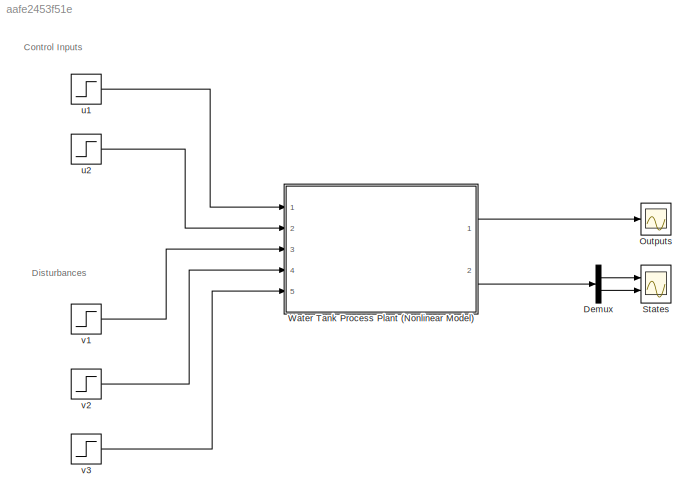
MODEL slx_aafe2453f51e
KIND model
CONFIG AbsTol = auto
CONFIG FixedStep = STEP_SIZE
CONFIG MaxStep = auto
CONFIG MinStep = auto
CONFIG RelTol = 1e-3
CONFIG SampleTimeConstraint = Unconstrained
CONFIG Solver = ode4
CONFIG SolverMode = Auto
CONFIG SolverName = ode4
CONFIG StartTime = 0.0
CONFIG StopTime = SIM_TIME
BLOCK [Demux] Demux
  DisplayOption = bar
  Outputs = 2
  Ports = [1, 2]
BLOCK [Scope] Outputs
  Ports = [1]
  ScopeSpecificationString = C++SS(StrPVP('Location','[1, 48, 1921, 1159]'),StrPVP('Open','off'),MxPVP('AxesTitles',24,'struct(''axes1'',''%<SignalLabel>'')'),MxPVP('ScopeGraphics',28,'struct(''FigureColor'',''[0.5 0.5 0.5]'',''AxesColor'',''[0 0 0]'',''AxesTickColor'',''[1 1 1]'',''LineColors'',''[1 1 0;1 0 1;0 1 1;1 0 0;0 1 0;0 0 1]'',''LineStyles'',''-|-|-|-|-|-'',''LineWidths'',''[0.5 0.5 0.5 0.5 0.5 0.5]'',''MarkerStyles...<+239ch>
BLOCK [Scope] States
  NumInputPorts = 2
  Ports = [2]
  ScopeSpecificationString = C++SS(StrPVP('Location','[1, 48, 1921, 1159]'),StrPVP('Open','off'),MxPVP('AxesTitles',24,'struct(''axes1'',''%<SignalLabel>'',''axes2'',''%<SignalLabel>'')'),MxPVP('ScopeGraphics',28,'struct(''FigureColor'',''[0.5 0.5 0.5]'',''AxesColor'',''[0 0 0]'',''AxesTickColor'',''[1 1 1]'',''LineColors'',''[1 1 0;1 0 1;0 1 1;1 0 0;0 1 0;0 0 1]'',''LineStyles'',''-|-|-|-|-|-'',''LineWidths'',''[0.5 0.5 0.5 ...<+344ch>
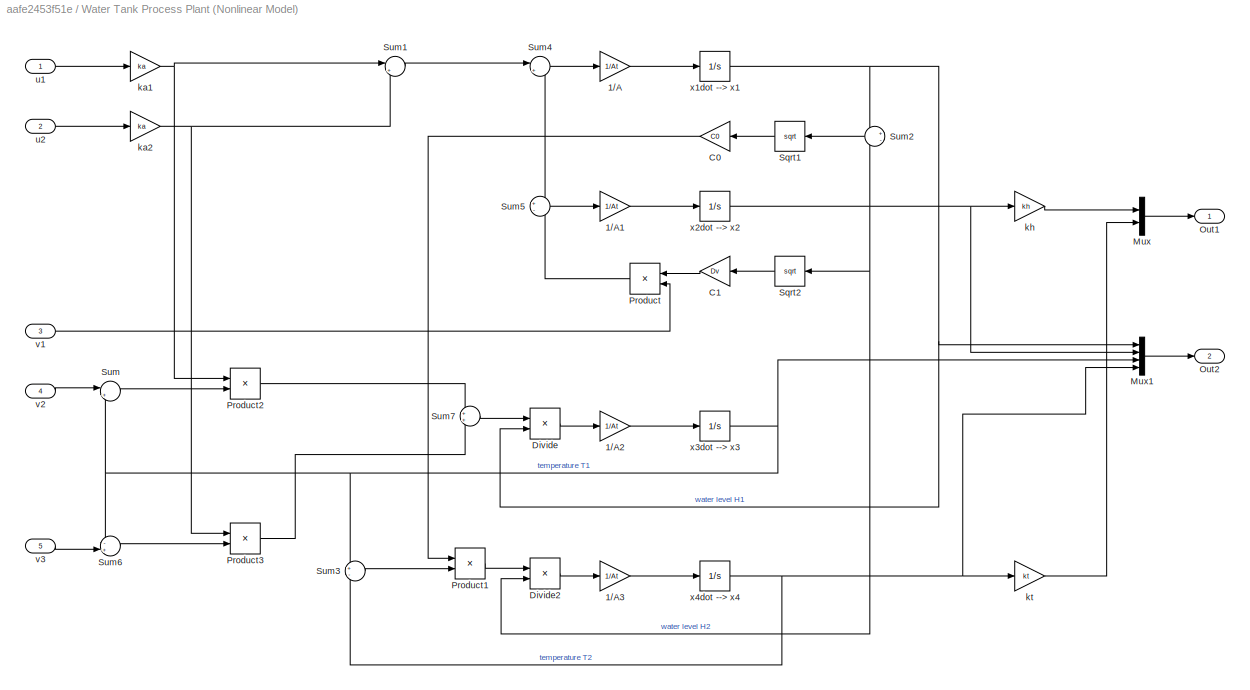
BLOCK [SubSystem] Water Tank Process Plant (Nonlinear Model)
  Ports = [5, 2]
  RequestExecContextInheritance = off
  Variant = off
BLOCK [Gain] Water Tank Process Plant (Nonlinear Model)/1//A
  Gain = 1/At
  OutDataTypeStr = Inherit: Inherit via internal rule
  ParamDataTypeStr = Inherit: Inherit via internal rule
  SaturateOnIntegerOverflow = off
BLOCK [Gain] Water Tank Process Plant (Nonlinear Model)/1//A1
  Gain = 1/At
  OutDataTypeStr = Inherit: Inherit via internal rule
  ParamDataTypeStr = Inherit: Inherit via internal rule
  SaturateOnIntegerOverflow = off
BLOCK [Gain] Water Tank Process Plant (Nonlinear Model)/1//A2
  Gain = 1/At
  OutDataTypeStr = Inherit: Inherit via internal rule
  ParamDataTypeStr = Inherit: Inherit via internal rule
  SaturateOnIntegerOverflow = off
BLOCK [Gain] Water Tank Process Plant (Nonlinear Model)/1//A3
  Gain = 1/At
  OutDataTypeStr = Inherit: Inherit via internal rule
  ParamDataTypeStr = Inherit: Inherit via internal rule
  SaturateOnIntegerOverflow = off
BLOCK [Gain] Water Tank Process Plant (Nonlinear Model)/C0
  Gain = C0
  OutDataTypeStr = Inherit: Inherit via internal rule
  ParamDataTypeStr = Inherit: Inherit via internal rule
  SaturateOnIntegerOverflow = off
BLOCK [Gain] Water Tank Process Plant (Nonlinear Model)/C1
  Gain = Dv
  OutDataTypeStr = Inherit: Inherit via internal rule
  ParamDataTypeStr = Inherit: Inherit via internal rule
  SaturateOnIntegerOverflow = off
BLOCK [Product] Water Tank Process Plant (Nonlinear Model)/Divide
  InputSameDT = off
  Inputs = */
  OutDataTypeStr = Inherit: Inherit via internal rule
  Ports = [2, 1]
  RndMeth = Floor
  SaturateOnIntegerOverflow = off
BLOCK [Product] Water Tank Process Plant (Nonlinear Model)/Divide2
  InputSameDT = off
  Inputs = */
  OutDataTypeStr = Inherit: Inherit via internal rule
  Ports = [2, 1]
  RndMeth = Floor
  SaturateOnIntegerOverflow = off
BLOCK [Mux] Water Tank Process Plant (Nonlinear Model)/Mux
  DisplayOption = bar
  Inputs = 2
  Ports = [2, 1]
BLOCK [Mux] Water Tank Process Plant (Nonlinear Model)/Mux1
  DisplayOption = bar
  Ports = [4, 1]
BLOCK [Outport] Water Tank Process Plant (Nonlinear Model)/Out1
  IconDisplay = Port number
BLOCK [Outport] Water Tank Process Plant (Nonlinear Model)/Out2
  IconDisplay = Port number
  Port = 2
BLOCK [Product] Water Tank Process Plant (Nonlinear Model)/Product
  InputSameDT = off
  OutDataTypeStr = Inherit: Inherit via internal rule
  Ports = [2, 1]
  RndMeth = Floor
  SaturateOnIntegerOverflow = off
BLOCK [Product] Water Tank Process Plant (Nonlinear Model)/Product1
  InputSameDT = off
  OutDataTypeStr = Inherit: Inherit via internal rule
  Ports = [2, 1]
  RndMeth = Floor
  SaturateOnIntegerOverflow = off
BLOCK [Product] Water Tank Process Plant (Nonlinear Model)/Product2
  InputSameDT = off
  OutDataTypeStr = Inherit: Inherit via internal rule
  Ports = [2, 1]
  RndMeth = Floor
  SaturateOnIntegerOverflow = off
BLOCK [Product] Water Tank Process Plant (Nonlinear Model)/Product3
  InputSameDT = off
  OutDataTypeStr = Inherit: Inherit via internal rule
  Ports = [2, 1]
  RndMeth = Floor
  SaturateOnIntegerOverflow = off
BLOCK [Sqrt] Water Tank Process Plant (Nonlinear Model)/Sqrt1
BLOCK [Sqrt] Water Tank Process Plant (Nonlinear Model)/Sqrt2
BLOCK [Sum] Water Tank Process Plant (Nonlinear Model)/Sum
  IconShape = round
  InputSameDT = off
  Inputs = |+-
  OutDataTypeStr = Inherit: Inherit via internal rule
  Ports = [2, 1]
  SaturateOnIntegerOverflow = off
BLOCK [Sum] Water Tank Process Plant (Nonlinear Model)/Sum1
  IconShape = round
  InputSameDT = off
  Inputs = |++
  OutDataTypeStr = Inherit: Inherit via internal rule
  Ports = [2, 1]
  SaturateOnIntegerOverflow = off
BLOCK [Sum] Water Tank Process Plant (Nonlinear Model)/Sum2
  IconShape = round
  InputSameDT = off
  Inputs = +-
  OutDataTypeStr = Inherit: Inherit via internal rule
  Ports = [2, 1]
  SaturateOnIntegerOverflow = off
BLOCK [Sum] Water Tank Process Plant (Nonlinear Model)/Sum3
  IconShape = round
  InputSameDT = off
  Inputs = +-
  OutDataTypeStr = Inherit: Inherit via internal rule
  Ports = [2, 1]
  SaturateOnIntegerOverflow = off
BLOCK [Sum] Water Tank Process Plant (Nonlinear Model)/Sum4
  IconShape = round
  InputSameDT = off
  Inputs = |+-
  OutDataTypeStr = Inherit: Inherit via internal rule
  Ports = [2, 1]
  SaturateOnIntegerOverflow = off
BLOCK [Sum] Water Tank Process Plant (Nonlinear Model)/Sum5
  IconShape = round
  InputSameDT = off
  Inputs = +-
  OutDataTypeStr = Inherit: Inherit via internal rule
  Ports = [2, 1]
  SaturateOnIntegerOverflow = off
BLOCK [Sum] Water Tank Process Plant (Nonlinear Model)/Sum6
  IconShape = round
  InputSameDT = off
  Inputs = -+|
  OutDataTypeStr = Inherit: Inherit via internal rule
  Ports = [2, 1]
  SaturateOnIntegerOverflow = off
BLOCK [Sum] Water Tank Process Plant (Nonlinear Model)/Sum7
  IconShape = round
  InputSameDT = off
  OutDataTypeStr = Inherit: Inherit via internal rule
  Ports = [2, 1]
  SaturateOnIntegerOverflow = off
BLOCK [Gain] Water Tank Process Plant (Nonlinear Model)/ka1
  Gain = ka
  OutDataTypeStr = Inherit: Inherit via internal rule
  ParamDataTypeStr = Inherit: Inherit via internal rule
  SaturateOnIntegerOverflow = off
BLOCK [Gain] Water Tank Process Plant (Nonlinear Model)/ka2
  Gain = ka
  OutDataTypeStr = Inherit: Inherit via internal rule
  ParamDataTypeStr = Inherit: Inherit via internal rule
  SaturateOnIntegerOverflow = off
BLOCK [Gain] Water Tank Process Plant (Nonlinear Model)/kh
  Gain = kh
  OutDataTypeStr = Inherit: Inherit via internal rule
  ParamDataTypeStr = Inherit: Inherit via internal rule
  SaturateOnIntegerOverflow = off
BLOCK [Gain] Water Tank Process Plant (Nonlinear Model)/kt
  Gain = kt
  OutDataTypeStr = Inherit: Inherit via internal rule
  ParamDataTypeStr = Inherit: Inherit via internal rule
  SaturateOnIntegerOverflow = off
BLOCK [Inport] Water Tank Process Plant (Nonlinear Model)/u1
  IconDisplay = Port number
BLOCK [Inport] Water Tank Process Plant (Nonlinear Model)/u2
  IconDisplay = Port number
  Port = 2
BLOCK [Inport] Water Tank Process Plant (Nonlinear Model)/v1
  IconDisplay = Port number
  Port = 3
BLOCK [Inport] Water Tank Process Plant (Nonlinear Model)/v2
  IconDisplay = Port number
  Port = 4
BLOCK [Inport] Water Tank Process Plant (Nonlinear Model)/v3
  IconDisplay = Port number
  Port = 5
BLOCK [Integrator] Water Tank Process Plant (Nonlinear Model)/x1dot --> x1
  InitialCondition = x0(1)
  LimitOutput = on
  LowerSaturationLimit = 0
  Ports = [1, 1]
BLOCK [Integrator] Water Tank Process Plant (Nonlinear Model)/x2dot --> x2
  InitialCondition = x0(2)
  LimitOutput = on
  LowerSaturationLimit = 0
  Ports = [1, 1]
BLOCK [Integrator] Water Tank Process Plant (Nonlinear Model)/x3dot --> x3
  InitialCondition = x0(3)
  Ports = [1, 1]
BLOCK [Integrator] Water Tank Process Plant (Nonlinear Model)/x4dot --> x4
  InitialCondition = x0(4)
  Ports = [1, 1]
BLOCK [Step] u1
  After = uw1
  Before = uw0
  SampleTime = 0
  Time = Tw
BLOCK [Step] u2
  After = uc1
  Before = uc0
  SampleTime = 0
  Time = Tc
BLOCK [Step] v1
  After = Av1
  Before = Av0
  SampleTime = 0
  Time = Tv
BLOCK [Step] v2
  After = Tw1
  Before = Tw0
  SampleTime = 0
  Time = T1
BLOCK [Step] v3
  After = Tc1
  Before = Tc0
  SampleTime = 0
  Time = T2
ANNOTATION (root): Control Inputs
ANNOTATION (root): Disturbances
LINE Demux:1 -> States:1
LINE Demux:2 -> States:2
LINE Water Tank Process Plant (Nonlinear Model)/1//A1:1 -> Water Tank Process Plant (Nonlinear Model)/x2dot --> x2:1
LINE Water Tank Process Plant (Nonlinear Model)/1//A2:1 -> Water Tank Process Plant (Nonlinear Model)/x3dot --> x3:1
LINE Water Tank Process Plant (Nonlinear Model)/1//A3:1 -> Water Tank Process Plant (Nonlinear Model)/x4dot --> x4:1
LINE Water Tank Process Plant (Nonlinear Model)/1//A:1 -> Water Tank Process Plant (Nonlinear Model)/x1dot --> x1:1
NET Water Tank Process Plant (Nonlinear Model)/C0:1 -> Water Tank Process Plant (Nonlinear Model)/Product1:1, Water Tank Process Plant (Nonlinear Model)/Sum4:2, Water Tank Process Plant (Nonlinear Model)/Sum5:1
LINE Water Tank Process Plant (Nonlinear Model)/C1:1 -> Water Tank Process Plant (Nonlinear Model)/Product:1
LINE Water Tank Process Plant (Nonlinear Model)/Divide2:1 -> Water Tank Process Plant (Nonlinear Model)/1//A3:1
LINE Water Tank Process Plant (Nonlinear Model)/Divide:1 -> Water Tank Process Plant (Nonlinear Model)/1//A2:1
LINE Water Tank Process Plant (Nonlinear Model)/Mux1:1 -> Water Tank Process Plant (Nonlinear Model)/Out2:1
LINE Water Tank Process Plant (Nonlinear Model)/Mux:1 -> Water Tank Process Plant (Nonlinear Model)/Out1:1
LINE Water Tank Process Plant (Nonlinear Model)/Product1:1 -> Water Tank Process Plant (Nonlinear Model)/Divide2:1
LINE Water Tank Process Plant (Nonlinear Model)/Product2:1 -> Water Tank Process Plant (Nonlinear Model)/Sum7:1
LINE Water Tank Process Plant (Nonlinear Model)/Product3:1 -> Water Tank Process Plant (Nonlinear Model)/Sum7:2
LINE Water Tank Process Plant (Nonlinear Model)/Product:1 -> Water Tank Process Plant (Nonlinear Model)/Sum5:2
LINE Water Tank Process Plant (Nonlinear Model)/Sqrt1:1 -> Water Tank Process Plant (Nonlinear Model)/C0:1
LINE Water Tank Process Plant (Nonlinear Model)/Sqrt2:1 -> Water Tank Process Plant (Nonlinear Model)/C1:1
LINE Water Tank Process Plant (Nonlinear Model)/Sum1:1 -> Water Tank Process Plant (Nonlinear Model)/Sum4:1
LINE Water Tank Process Plant (Nonlinear Model)/Sum2:1 -> Water Tank Process Plant (Nonlinear Model)/Sqrt1:1
LINE Water Tank Process Plant (Nonlinear Model)/Sum3:1 -> Water Tank Process Plant (Nonlinear Model)/Product1:2
LINE Water Tank Process Plant (Nonlinear Model)/Sum4:1 -> Water Tank Process Plant (Nonlinear Model)/1//A:1
LINE Water Tank Process Plant (Nonlinear Model)/Sum5:1 -> Water Tank Process Plant (Nonlinear Model)/1//A1:1
LINE Water Tank Process Plant (Nonlinear Model)/Sum6:1 -> Water Tank Process Plant (Nonlinear Model)/Product3:2
LINE Water Tank Process Plant (Nonlinear Model)/Sum7:1 -> Water Tank Process Plant (Nonlinear Model)/Divide:1
LINE Water Tank Process Plant (Nonlinear Model)/Sum:1 -> Water Tank Process Plant (Nonlinear Model)/Product2:2
NET Water Tank Process Plant (Nonlinear Model)/ka1:1 -> Water Tank Process Plant (Nonlinear Model)/Product2:1, Water Tank Process Plant (Nonlinear Model)/Sum1:1
NET Water Tank Process Plant (Nonlinear Model)/ka2:1 -> Water Tank Process Plant (Nonlinear Model)/Product3:1, Water Tank Process Plant (Nonlinear Model)/Sum1:2
LINE Water Tank Process Plant (Nonlinear Model)/kh:1 -> Water Tank Process Plant (Nonlinear Model)/Mux:1
LINE Water Tank Process Plant (Nonlinear Model)/kt:1 -> Water Tank Process Plant (Nonlinear Model)/Mux:2
LINE Water Tank Process Plant (Nonlinear Model)/u1:1 -> Water Tank Process Plant (Nonlinear Model)/ka1:1
LINE Water Tank Process Plant (Nonlinear Model)/u2:1 -> Water Tank Process Plant (Nonlinear Model)/ka2:1
LINE Water Tank Process Plant (Nonlinear Model)/v1:1 -> Water Tank Process Plant (Nonlinear Model)/Product:2
LINE Water Tank Process Plant (Nonlinear Model)/v2:1 -> Water Tank Process Plant (Nonlinear Model)/Sum:1
LINE Water Tank Process Plant (Nonlinear Model)/v3:1 -> Water Tank Process Plant (Nonlinear Model)/Sum6:2
NET Water Tank Process Plant (Nonlinear Model)/x1dot --> x1:1 -> Water Tank Process Plant (Nonlinear Model)/Divide:2, Water Tank Process Plant (Nonlinear Model)/Mux1:1, Water Tank Process Plant (Nonlinear Model)/Sum2:1
NET Water Tank Process Plant (Nonlinear Model)/x2dot --> x2:1 -> Water Tank Process Plant (Nonlinear Model)/Divide2:2, Water Tank Process Plant (Nonlinear Model)/Mux1:2, Water Tank Process Plant (Nonlinear Model)/Sqrt2:1, Water Tank Process Plant (Nonlinear Model)/Sum2:2, Water Tank Process Plant (Nonlinear Model)/kh:1
NET Water Tank Process Plant (Nonlinear Model)/x3dot --> x3:1 -> Water Tank Process Plant (Nonlinear Model)/Mux1:3, Water Tank Process Plant (Nonlinear Model)/Sum3:1, Water Tank Process Plant (Nonlinear Model)/Sum6:1, Water Tank Process Plant (Nonlinear Model)/Sum:2
NET Water Tank Process Plant (Nonlinear Model)/x4dot --> x4:1 -> Water Tank Process Plant (Nonlinear Model)/Mux1:4, Water Tank Process Plant (Nonlinear Model)/Sum3:2, Water Tank Process Plant (Nonlinear Model)/kt:1
LINE Water Tank Process Plant (Nonlinear Model):1 -> Outputs:1
LINE Water Tank Process Plant (Nonlinear Model):2 -> Demux:1
LINE u1:1 -> Water Tank Process Plant (Nonlinear Model):1
LINE u2:1 -> Water Tank Process Plant (Nonlinear Model):2
LINE v1:1 -> Water Tank Process Plant (Nonlinear Model):3
LINE v2:1 -> Water Tank Process Plant (Nonlinear Model):4
LINE v3:1 -> Water Tank Process Plant (Nonlinear Model):5
note: NET lines group one-source signal fan-out (src -> all destinations, sorted); 1:1 wires keep LINE
